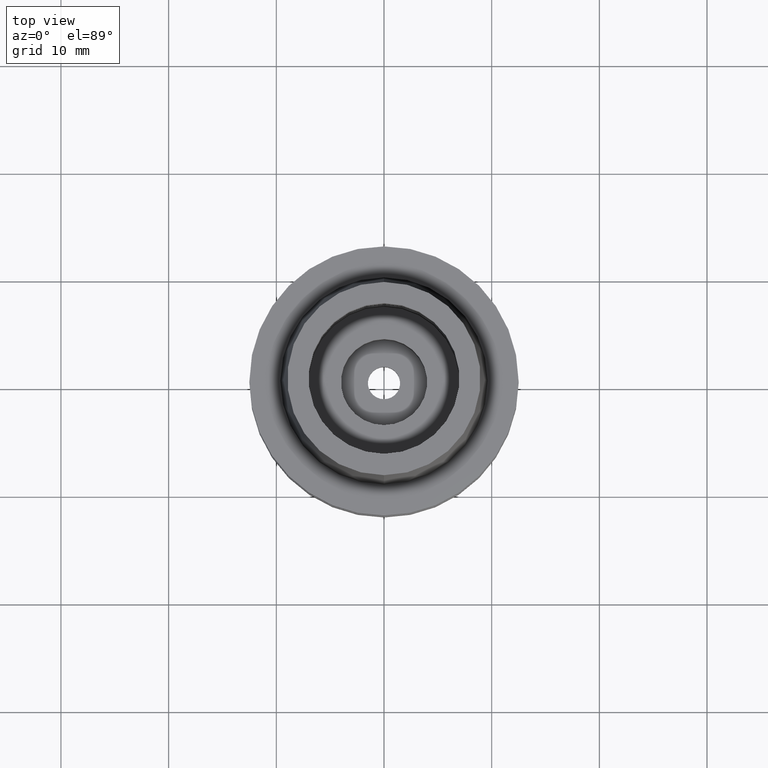
[diagram: clean part render]
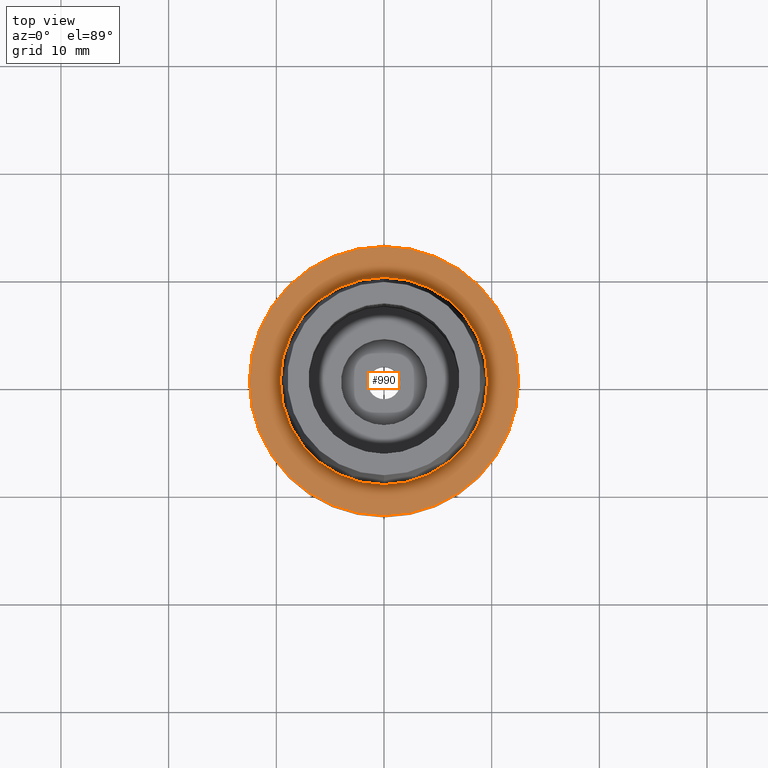
[diagram: same view with one face highlighted and labeled with its STEP entity id]
A machine part, top view. The second image highlights one B-rep face of the part: STEP entity #990.
In plain terms, the highlighted planar face has unit normal (0, 0, 1).
Its self-contained STEP definition (entity closure, byte-faithful):
#80 = ORIENTED_EDGE ( 'NONE', *, *, #1169, .F. ) ;
#155 = CIRCLE ( 'NONE', #1983, 12.50000000000000000 ) ;
#175 = VERTEX_POINT ( 'NONE', #2021 ) ;
#247 = EDGE_LOOP ( 'NONE', ( #80, #2550 ) ) ;
#364 = CARTESIAN_POINT ( 'NONE',  ( 0.0000000000000000000, 0.0000000000000000000, 0.0000000000000000000 ) ) ;
#565 = FACE_BOUND ( 'NONE', #1508, .T. ) ;
#652 = ORIENTED_EDGE ( 'NONE', *, *, #2245, .F. ) ;
#733 = EDGE_CURVE ( 'NONE', #1886, #175, #155, .T. ) ;
#990 = ADVANCED_FACE ( 'NONE', ( #1565, #565 ), #1211, .T. ) ;
#1056 = CARTESIAN_POINT ( 'NONE',  ( 0.0000000000000000000, 0.0000000000000000000, 3.552713678800999489E-14 ) ) ;
#1169 = EDGE_CURVE ( 'NONE', #175, #1886, #2244, .T. ) ;
#1211 = PLANE ( 'NONE',  #1596 ) ;
#1248 = CIRCLE ( 'NONE', #1993, 9.624999771398000448 ) ;
#1268 = DIRECTION ( 'NONE',  ( 0.0000000000000000000, -1.000000000000000000, 0.0000000000000000000 ) ) ;
#1296 = CARTESIAN_POINT ( 'NONE',  ( 0.0000000000000000000, 0.0000000000000000000, 3.552713678800999489E-14 ) ) ;
#1338 = CARTESIAN_POINT ( 'NONE',  ( 0.0000000000000000000, -12.50000000000000000, 3.552713678800999489E-14 ) ) ;
#1406 = CARTESIAN_POINT ( 'NONE',  ( 0.0000000000000000000, 9.624999771398000448, 1.332267629550000037E-13 ) ) ;
#1416 = CIRCLE ( 'NONE', #1863, 9.624999771398000448 ) ;
#1466 = DIRECTION ( 'NONE',  ( 0.0000000000000000000, 0.0000000000000000000, -1.000000000000000000 ) ) ;
#1508 = EDGE_LOOP ( 'NONE', ( #652, #2201 ) ) ;
#1514 = EDGE_CURVE ( 'NONE', #1698, #2197, #1416, .T. ) ;
#1565 = FACE_OUTER_BOUND ( 'NONE', #247, .T. ) ;
#1596 = AXIS2_PLACEMENT_3D ( 'NONE', #364, #2446, #2231 ) ;
#1698 = VERTEX_POINT ( 'NONE', #2088 ) ;
#1863 = AXIS2_PLACEMENT_3D ( 'NONE', #2020, #2439, #2479 ) ;
#1886 = VERTEX_POINT ( 'NONE', #1338 ) ;
#1983 = AXIS2_PLACEMENT_3D ( 'NONE', #1296, #2360, #1268 ) ;
#1993 = AXIS2_PLACEMENT_3D ( 'NONE', #2456, #2259, #2651 ) ;
#2020 = CARTESIAN_POINT ( 'NONE',  ( 0.0000000000000000000, 0.0000000000000000000, 2.557953848736000191E-13 ) ) ;
#2021 = CARTESIAN_POINT ( 'NONE',  ( 0.0000000000000000000, 12.50000000000000000, 3.552713678800999489E-14 ) ) ;
#2088 = CARTESIAN_POINT ( 'NONE',  ( 0.0000000000000000000, -9.624999771398000448, 1.332267629550000037E-13 ) ) ;
#2117 = AXIS2_PLACEMENT_3D ( 'NONE', #1056, #1466, #2355 ) ;
#2197 = VERTEX_POINT ( 'NONE', #1406 ) ;
#2201 = ORIENTED_EDGE ( 'NONE', *, *, #1514, .F. ) ;
#2231 = DIRECTION ( 'NONE',  ( 1.000000000000000000, 0.0000000000000000000, 0.0000000000000000000 ) ) ;
#2244 = CIRCLE ( 'NONE', #2117, 12.50000000000000000 ) ;
#2245 = EDGE_CURVE ( 'NONE', #2197, #1698, #1248, .T. ) ;
#2259 = DIRECTION ( 'NONE',  ( 0.0000000000000000000, 0.0000000000000000000, 1.000000000000000000 ) ) ;
#2355 = DIRECTION ( 'NONE',  ( 0.0000000000000000000, 1.000000000000000000, 0.0000000000000000000 ) ) ;
#2360 = DIRECTION ( 'NONE',  ( 0.0000000000000000000, 0.0000000000000000000, -1.000000000000000000 ) ) ;
#2439 = DIRECTION ( 'NONE',  ( 0.0000000000000000000, 0.0000000000000000000, 1.000000000000000000 ) ) ;
#2446 = DIRECTION ( 'NONE',  ( 0.0000000000000000000, 0.0000000000000000000, 1.000000000000000000 ) ) ;
#2456 = CARTESIAN_POINT ( 'NONE',  ( 0.0000000000000000000, 0.0000000000000000000, 2.557953848736000191E-13 ) ) ;
#2479 = DIRECTION ( 'NONE',  ( 0.0000000000000000000, -1.000000000000000000, 0.0000000000000000000 ) ) ;
#2550 = ORIENTED_EDGE ( 'NONE', *, *, #733, .F. ) ;
#2651 = DIRECTION ( 'NONE',  ( 0.0000000000000000000, 1.000000000000000000, 0.0000000000000000000 ) ) ;